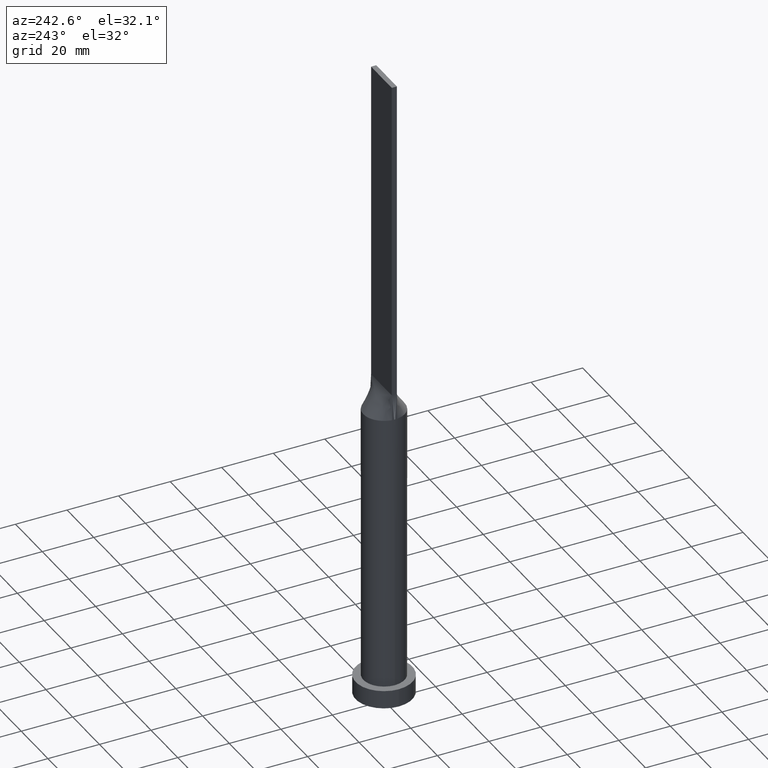
[diagram: clean part render]
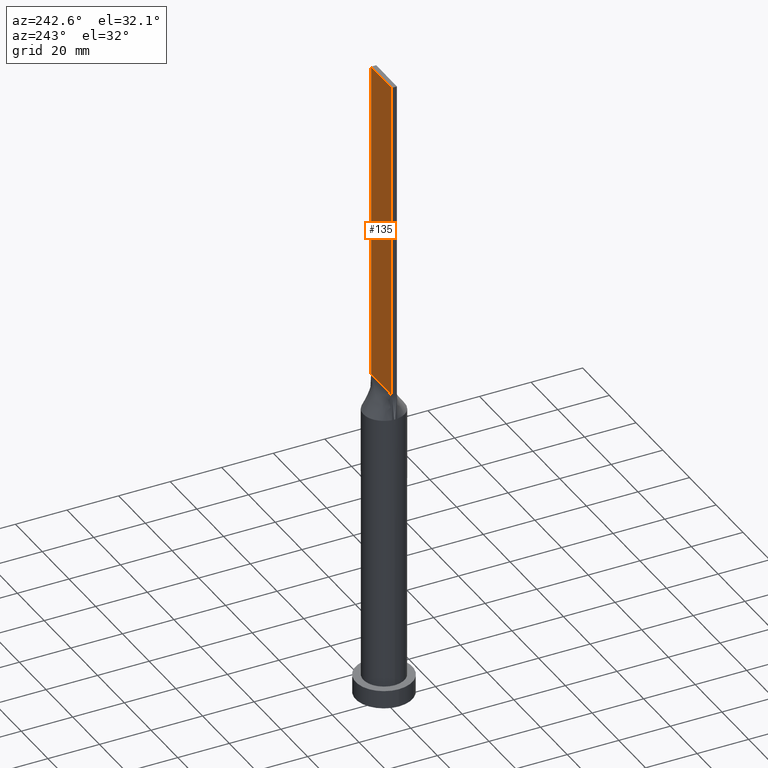
[diagram: same view with one face highlighted and labeled with its STEP entity id]
A machine part, auxiliary view. The second image highlights one B-rep face of the part: STEP entity #135.
In plain terms, the highlighted planar face has unit normal (0, -1, 0).
Its self-contained STEP definition (entity closure, byte-faithful):
#70 = EDGE_CURVE ( 'NONE', #371, #153, #130, .T. ) ;
#73 = VERTEX_POINT ( 'NONE', #481 ) ;
#102 = CARTESIAN_POINT ( 'NONE',  ( -7.750000000000000000, 1.000000000000000000, 250.0000000000000000 ) ) ;
#130 = LINE ( 'NONE', #336, #322 ) ;
#135 = ADVANCED_FACE ( 'NONE', ( #244 ), #150, .F. ) ;
#150 = PLANE ( 'NONE',  #513 ) ;
#153 = VERTEX_POINT ( 'NONE', #355 ) ;
#240 = LINE ( 'NONE', #289, #577 ) ;
#244 = FACE_OUTER_BOUND ( 'NONE', #380, .T. ) ;
#270 = VECTOR ( 'NONE', #374, 1000.000000000000000 ) ;
#289 = CARTESIAN_POINT ( 'NONE',  ( 7.750000000000000000, 1.000000000000000000, 250.0000000000000000 ) ) ;
#294 = EDGE_CURVE ( 'NONE', #427, #371, #600, .T. ) ;
#322 = VECTOR ( 'NONE', #527, 1000.000000000000000 ) ;
#336 = CARTESIAN_POINT ( 'NONE',  ( -7.750000000000000000, 1.000000000000000000, 125.0000000000000000 ) ) ;
#337 = VECTOR ( 'NONE', #462, 1000.000000000000000 ) ;
#355 = CARTESIAN_POINT ( 'NONE',  ( -7.750000000000000000, 1.000000000000000000, 125.0000000000000000 ) ) ;
#363 = LINE ( 'NONE', #102, #337 ) ;
#371 = VERTEX_POINT ( 'NONE', #456 ) ;
#374 = DIRECTION ( 'NONE',  ( -0.000000000000000000, -0.000000000000000000, -1.000000000000000000 ) ) ;
#380 = EDGE_LOOP ( 'NONE', ( #569, #474, #612, #618 ) ) ;
#383 = DIRECTION ( 'NONE',  ( -1.000000000000000000, 0.000000000000000000, 0.000000000000000000 ) ) ;
#390 = CARTESIAN_POINT ( 'NONE',  ( 7.750000000000000000, 1.000000000000000000, 250.0000000000000000 ) ) ;
#400 = EDGE_CURVE ( 'NONE', #73, #153, #363, .T. ) ;
#427 = VERTEX_POINT ( 'NONE', #390 ) ;
#446 = DIRECTION ( 'NONE',  ( 0.000000000000000000, -1.000000000000000000, 0.000000000000000000 ) ) ;
#456 = CARTESIAN_POINT ( 'NONE',  ( 7.750000000000000000, 1.000000000000000000, 125.0000000000000000 ) ) ;
#462 = DIRECTION ( 'NONE',  ( -0.000000000000000000, -0.000000000000000000, -1.000000000000000000 ) ) ;
#474 = ORIENTED_EDGE ( 'NONE', *, *, #400, .F. ) ;
#481 = CARTESIAN_POINT ( 'NONE',  ( -7.750000000000000000, 1.000000000000000000, 250.0000000000000000 ) ) ;
#492 = EDGE_CURVE ( 'NONE', #427, #73, #240, .T. ) ;
#513 = AXIS2_PLACEMENT_3D ( 'NONE', #634, #446, #639 ) ;
#527 = DIRECTION ( 'NONE',  ( -1.000000000000000000, -0.000000000000000000, -0.000000000000000000 ) ) ;
#569 = ORIENTED_EDGE ( 'NONE', *, *, #70, .T. ) ;
#577 = VECTOR ( 'NONE', #383, 1000.000000000000000 ) ;
#600 = LINE ( 'NONE', #606, #270 ) ;
#606 = CARTESIAN_POINT ( 'NONE',  ( 7.750000000000000000, 1.000000000000000000, 250.0000000000000000 ) ) ;
#612 = ORIENTED_EDGE ( 'NONE', *, *, #492, .F. ) ;
#618 = ORIENTED_EDGE ( 'NONE', *, *, #294, .T. ) ;
#634 = CARTESIAN_POINT ( 'NONE',  ( 7.750000000000000000, 1.000000000000000000, 250.0000000000000000 ) ) ;
#639 = DIRECTION ( 'NONE',  ( 0.000000000000000000, -0.000000000000000000, -1.000000000000000000 ) ) ;